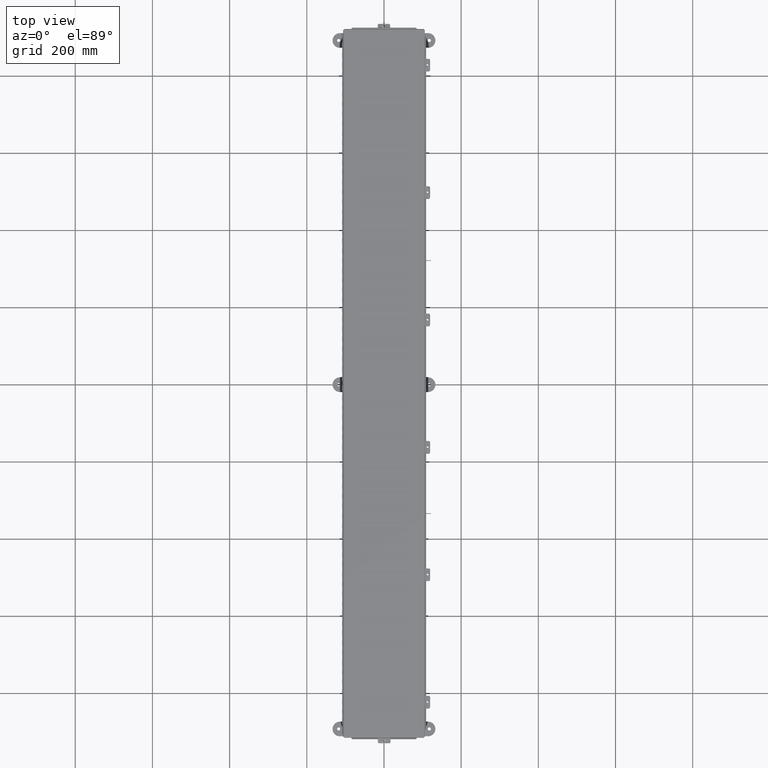
[diagram: clean part render]
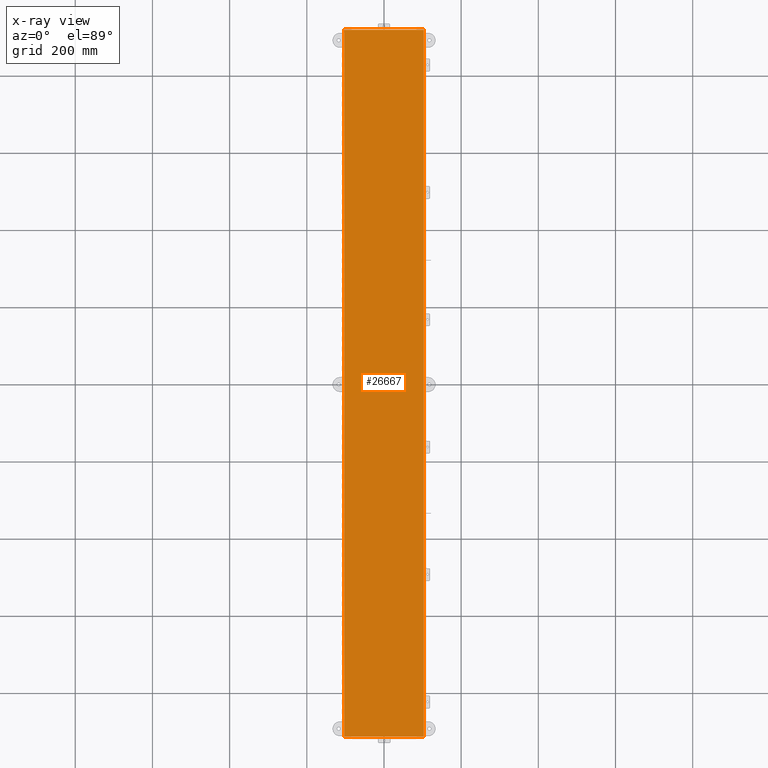
[diagram: x-ray — body ghosted, one internal face saturated and labeled with its STEP entity id]
A machine part, top view, then the same camera in x-ray: the body is ghosted and one INTERNAL B-rep face — a face not visible from any outside direction — is saturated and labeled: STEP entity #26667.
In plain terms, the highlighted planar face has unit normal (0, -0, 1).
Its self-contained STEP definition (entity closure, byte-faithful):
#809 = ORIENTED_EDGE ( 'NONE', *, *, #12060, .F. ) ;
#1039 = VECTOR ( 'NONE', #22927, 39.37007874015748100 ) ;
#2856 = ORIENTED_EDGE ( 'NONE', *, *, #17013, .F. ) ;
#3479 = VECTOR ( 'NONE', #16751, 39.37007874015748100 ) ;
#4785 = VERTEX_POINT ( 'NONE', #8115 ) ;
#8115 = CARTESIAN_POINT ( 'NONE',  ( 4.068550000000013400, 36.06854999999998800, 0.0000000000000000000 ) ) ;
#8326 = VECTOR ( 'NONE', #15080, 39.37007874015748100 ) ;
#11080 = CARTESIAN_POINT ( 'NONE',  ( 4.068550000000013400, -36.06855000000000900, 0.0000000000000000000 ) ) ;
#12060 = EDGE_CURVE ( 'NONE', #47167, #4785, #15023, .T. ) ;
#15023 = LINE ( 'NONE', #40157, #3479 ) ;
#15080 = DIRECTION ( 'NONE',  ( -1.890322620761828000E-028, -1.000000000000000000, 3.771741203087962700E-030 ) ) ;
#16032 = ORIENTED_EDGE ( 'NONE', *, *, #27258, .F. ) ;
#16751 = DIRECTION ( 'NONE',  ( 1.000000000000000000, 1.890815658827583500E-028, -0.0000000000000000000 ) ) ;
#17013 = EDGE_CURVE ( 'NONE', #27723, #47167, #32113, .T. ) ;
#18629 = LINE ( 'NONE', #22569, #8326 ) ;
#18880 = CARTESIAN_POINT ( 'NONE',  ( -4.068550000000025900, 36.06854999999999500, 0.0000000000000000000 ) ) ;
#21149 = DIRECTION ( 'NONE',  ( -7.271503942115330600E-058, 3.845696912952417800E-030, -1.000000000000000000 ) ) ;
#22090 = EDGE_CURVE ( 'NONE', #4785, #50007, #18629, .T. ) ;
#22569 = CARTESIAN_POINT ( 'NONE',  ( 4.068550000000013400, 36.07447893218812900, 0.0000000000000000000 ) ) ;
#22927 = DIRECTION ( 'NONE',  ( 1.890322620761828000E-028, 1.000000000000000000, -3.771741203087962700E-030 ) ) ;
#25720 = DIRECTION ( 'NONE',  ( -1.000000000000000000, -1.890815658827583500E-028, -0.0000000000000000000 ) ) ;
#26667 = ADVANCED_FACE ( 'NONE', ( #42630 ), #40656, .F. ) ;
#26780 = EDGE_LOOP ( 'NONE', ( #36275, #809, #2856, #16032 ) ) ;
#27258 = EDGE_CURVE ( 'NONE', #50007, #27723, #37687, .T. ) ;
#27723 = VERTEX_POINT ( 'NONE', #32358 ) ;
#30712 = AXIS2_PLACEMENT_3D ( 'NONE', #32791, #21149, #48487 ) ;
#32113 = LINE ( 'NONE', #46311, #1039 ) ;
#32358 = CARTESIAN_POINT ( 'NONE',  ( -4.068550000000025900, -36.06855000000000900, 0.0000000000000000000 ) ) ;
#32791 = CARTESIAN_POINT ( 'NONE',  ( 0.0000000000000000000, 0.0000000000000000000, 0.0000000000000000000 ) ) ;
#36275 = ORIENTED_EDGE ( 'NONE', *, *, #22090, .F. ) ;
#37687 = LINE ( 'NONE', #45179, #45605 ) ;
#40157 = CARTESIAN_POINT ( 'NONE',  ( -4.074478932188159600, 36.06854999999999500, 0.0000000000000000000 ) ) ;
#40656 = PLANE ( 'NONE',  #30712 ) ;
#42630 = FACE_OUTER_BOUND ( 'NONE', #26780, .T. ) ;
#45179 = CARTESIAN_POINT ( 'NONE',  ( 4.074478932188148100, -36.06855000000000900, 0.0000000000000000000 ) ) ;
#45605 = VECTOR ( 'NONE', #25720, 39.37007874015748100 ) ;
#46311 = CARTESIAN_POINT ( 'NONE',  ( -4.068550000000025900, -36.07447893218814300, -1.092739197465705300E-015 ) ) ;
#47167 = VERTEX_POINT ( 'NONE', #18880 ) ;
#48487 = DIRECTION ( 'NONE',  ( -1.000000000000000000, -1.890815658827583700E-028, 0.0000000000000000000 ) ) ;
#50007 = VERTEX_POINT ( 'NONE', #11080 ) ;